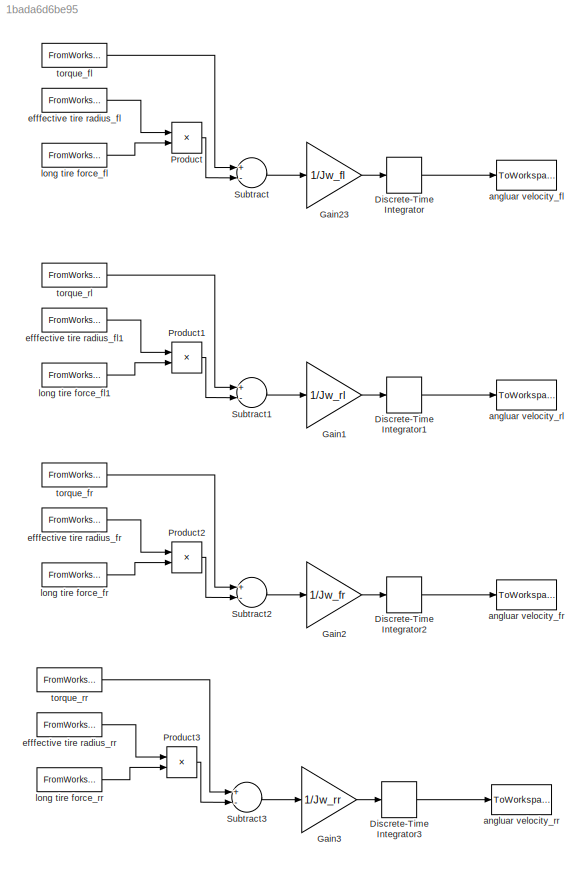
MODEL slx_1bada6d6be95
KIND model
CONFIG AbsTol = auto
CONFIG FixedStep = auto
CONFIG MaxStep = auto
CONFIG MinStep = auto
CONFIG RelTol = 1e-3
CONFIG SampleTimeConstraint = Unconstrained
CONFIG Solver = ode45
CONFIG SolverMode = Auto
CONFIG SolverName = ode45
CONFIG StartTime = 0.0
CONFIG StopTime = 10.0
BLOCK [DiscreteIntegrator] Discrete-Time Integrator
  InitialConditionSetting = State (most efficient)
  Ports = [1, 1]
BLOCK [DiscreteIntegrator] Discrete-Time Integrator1
  InitialConditionSetting = State (most efficient)
  Ports = [1, 1]
BLOCK [DiscreteIntegrator] Discrete-Time Integrator2
  InitialConditionSetting = State (most efficient)
  Ports = [1, 1]
BLOCK [DiscreteIntegrator] Discrete-Time Integrator3
  InitialConditionSetting = State (most efficient)
  Ports = [1, 1]
BLOCK [Gain] Gain1
  Gain = 1/Jw_rl
  OutDataTypeStr = Inherit: Inherit via internal rule
  ParamDataTypeStr = Inherit: Inherit via internal rule
  SaturateOnIntegerOverflow = off
BLOCK [Gain] Gain2
  Gain = 1/Jw_fr
  OutDataTypeStr = Inherit: Inherit via internal rule
  ParamDataTypeStr = Inherit: Inherit via internal rule
  SaturateOnIntegerOverflow = off
BLOCK [Gain] Gain23
  Gain = 1/Jw_fl
  OutDataTypeStr = Inherit: Inherit via internal rule
  ParamDataTypeStr = Inherit: Inherit via internal rule
  SaturateOnIntegerOverflow = off
BLOCK [Gain] Gain3
  Gain = 1/Jw_rr
  OutDataTypeStr = Inherit: Inherit via internal rule
  ParamDataTypeStr = Inherit: Inherit via internal rule
  SaturateOnIntegerOverflow = off
BLOCK [Product] Product
  InputSameDT = off
  OutDataTypeStr = Inherit: Inherit via internal rule
  Ports = [2, 1]
  RndMeth = Floor
  SaturateOnIntegerOverflow = off
BLOCK [Product] Product1
  InputSameDT = off
  OutDataTypeStr = Inherit: Inherit via internal rule
  Ports = [2, 1]
  RndMeth = Floor
  SaturateOnIntegerOverflow = off
BLOCK [Product] Product2
  InputSameDT = off
  OutDataTypeStr = Inherit: Inherit via internal rule
  Ports = [2, 1]
  RndMeth = Floor
  SaturateOnIntegerOverflow = off
BLOCK [Product] Product3
  InputSameDT = off
  OutDataTypeStr = Inherit: Inherit via internal rule
  Ports = [2, 1]
  RndMeth = Floor
  SaturateOnIntegerOverflow = off
BLOCK [Sum] Subtract
  InputSameDT = off
  Inputs = +-
  OutDataTypeStr = Inherit: Inherit via internal rule
  Ports = [2, 1]
  SaturateOnIntegerOverflow = off
BLOCK [Sum] Subtract1
  InputSameDT = off
  Inputs = +-
  OutDataTypeStr = Inherit: Inherit via internal rule
  Ports = [2, 1]
  SaturateOnIntegerOverflow = off
BLOCK [Sum] Subtract2
  InputSameDT = off
  Inputs = +-
  OutDataTypeStr = Inherit: Inherit via internal rule
  Ports = [2, 1]
  SaturateOnIntegerOverflow = off
BLOCK [Sum] Subtract3
  InputSameDT = off
  Inputs = +-
  OutDataTypeStr = Inherit: Inherit via internal rule
  Ports = [2, 1]
  SaturateOnIntegerOverflow = off
BLOCK [ToWorkspace] angluar velocity_fl
  FixptAsFi = on
  MaxDataPoints = inf
  Ports = [1]
  SampleTime = -1
  Save2DSignal = 3-D array (concatenate along third dimension)
  SaveFormat = Timeseries
  VariableName = w_fl
BLOCK [ToWorkspace] angluar velocity_fr
  FixptAsFi = on
  MaxDataPoints = inf
  Ports = [1]
  SampleTime = -1
  Save2DSignal = 3-D array (concatenate along third dimension)
  SaveFormat = Timeseries
  VariableName = w_fr
BLOCK [ToWorkspace] angluar velocity_rl
  FixptAsFi = on
  MaxDataPoints = inf
  Ports = [1]
  SampleTime = -1
  Save2DSignal = 3-D array (concatenate along third dimension)
  SaveFormat = Timeseries
  VariableName = w_rl
BLOCK [ToWorkspace] angluar velocity_rr
  FixptAsFi = on
  MaxDataPoints = inf
  Ports = [1]
  SampleTime = -1
  Save2DSignal = 3-D array (concatenate along third dimension)
  SaveFormat = Timeseries
  VariableName = w_rr
BLOCK [FromWorkspace] efffective tire radius_fl
  SampleTime = 0
  VariableName = re_fl
  ZeroCross = on
BLOCK [FromWorkspace] efffective tire radius_fl1
  SampleTime = 0
  VariableName = re_rl
  ZeroCross = on
BLOCK [FromWorkspace] efffective tire radius_fr
  SampleTime = 0
  VariableName = re_fr
  ZeroCross = on
BLOCK [FromWorkspace] efffective tire radius_rr
  SampleTime = 0
  VariableName = re_rr
  ZeroCross = on
BLOCK [FromWorkspace] long tire force_fl
  SampleTime = 0
  VariableName = F_xfl
  ZeroCross = on
BLOCK [FromWorkspace] long tire force_fl1
  SampleTime = 0
  VariableName = F_xrl
  ZeroCross = on
BLOCK [FromWorkspace] long tire force_fr
  SampleTime = 0
  VariableName = F_xfr
  ZeroCross = on
BLOCK [FromWorkspace] long tire force_rr
  SampleTime = 0
  VariableName = F_xrr
  ZeroCross = on
BLOCK [FromWorkspace] torque_fl
  SampleTime = 0
  VariableName = T_fl
  ZeroCross = on
BLOCK [FromWorkspace] torque_fr
  SampleTime = 0
  VariableName = T_fr
  ZeroCross = on
BLOCK [FromWorkspace] torque_rl
  SampleTime = 0
  VariableName = T_rl
  ZeroCross = on
BLOCK [FromWorkspace] torque_rr
  SampleTime = 0
  VariableName = T_rr
  ZeroCross = on
LINE Discrete-Time Integrator1:1 -> angluar velocity_rl:1
LINE Discrete-Time Integrator2:1 -> angluar velocity_fr:1
LINE Discrete-Time Integrator3:1 -> angluar velocity_rr:1
LINE Discrete-Time Integrator:1 -> angluar velocity_fl:1
LINE Gain1:1 -> Discrete-Time Integrator1:1
LINE Gain23:1 -> Discrete-Time Integrator:1
LINE Gain2:1 -> Discrete-Time Integrator2:1
LINE Gain3:1 -> Discrete-Time Integrator3:1
LINE Product1:1 -> Subtract1:2
LINE Product2:1 -> Subtract2:2
LINE Product3:1 -> Subtract3:2
LINE Product:1 -> Subtract:2
LINE Subtract1:1 -> Gain1:1
LINE Subtract2:1 -> Gain2:1
LINE Subtract3:1 -> Gain3:1
LINE Subtract:1 -> Gain23:1
LINE efffective tire radius_fl1:1 -> Product1:1
LINE efffective tire radius_fl:1 -> Product:1
LINE efffective tire radius_fr:1 -> Product2:1
LINE efffective tire radius_rr:1 -> Product3:1
LINE long tire force_fl1:1 -> Product1:2
LINE long tire force_fl:1 -> Product:2
LINE long tire force_fr:1 -> Product2:2
LINE long tire force_rr:1 -> Product3:2
LINE torque_fl:1 -> Subtract:1
LINE torque_fr:1 -> Subtract2:1
LINE torque_rl:1 -> Subtract1:1
LINE torque_rr:1 -> Subtract3:1
